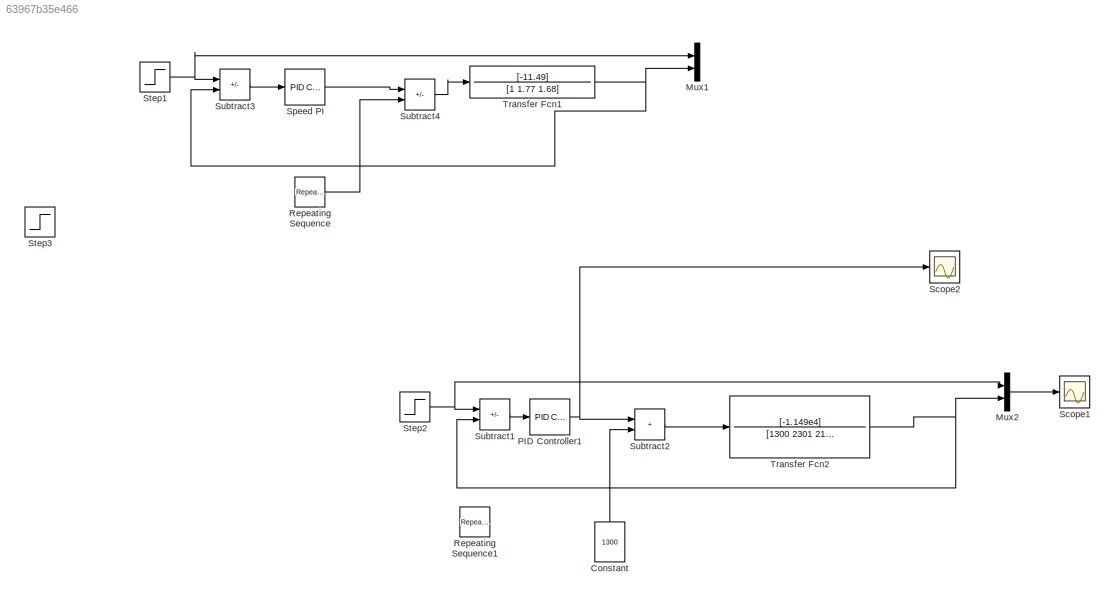
MODEL slx_63967b35e466
KIND model
CONFIG AbsTol = auto
CONFIG EnableMultiTasking = off
CONFIG FixedStep = auto
CONFIG MaxStep = 1e-5
CONFIG MinStep = auto
CONFIG RelTol = 1e-3
CONFIG SampleTimeConstraint = Unconstrained
CONFIG SolverName = VariableStepAuto
CONFIG StartTime = 0.0
CONFIG StopTime = 20
BLOCK [Constant] Constant
  NameLocation = right
  Value = 1300
BLOCK [Mux] Mux1
  DisplayOption = bar
  Inputs = 2
  Ports = [2, 1]
BLOCK [Mux] Mux2
  DisplayOption = bar
  Inputs = 2
  Ports = [2, 1]
BLOCK [Reference] PID Controller1  REF=pid_lib/PID Controller
  Ports = [1, 1]
  SourceBlock = pid_lib/PID Controller
  SourceProductBaseCode = SL
  SourceType = PID 1dof
BLOCK [Reference] Repeating Sequence  REF=simulink/Sources/Repeating
Sequence
  Ports = [0, 1]
  SourceBlock = simulink/Sources/Repeating\nSequence
  SourceProductBaseCode = SL
  SourceType = Repeating table
BLOCK [Reference] Repeating Sequence1  REF=simulink/Sources/Repeating
Sequence
  Ports = [0, 1]
  SourceBlock = simulink/Sources/Repeating\nSequence
  SourceProductBaseCode = SL
  SourceType = Repeating table
BLOCK [Scope] Scope1
  Floating = off
  NumInputPorts = 1
  Ports = [1]
  ScopeSpecificationString = Simulink.scopes.TimeScopeBlockCfg('CurrentConfiguration', extmgr.ConfigurationSet(extmgr.Configuration('Core','General UI',true),extmgr.Configuration('Core','Source UI',true),extmgr.Configuration('Sources','WiredSimulink',true,'DataLoggingVariableName','ScopeData1'),extmgr.Configuration('Visuals','Time Domain',true,'SerializedDisplays',{struct('MinYLimReal','-240.75894','MaxYLimReal','26.7621','YL...<+1512ch>
BLOCK [Scope] Scope2
  Floating = off
  NumInputPorts = 1
  Ports = [1]
  ScopeSpecificationString = Simulink.scopes.TimeScopeBlockCfg('CurrentConfiguration', extmgr.ConfigurationSet(extmgr.Configuration('Core','General UI',true),extmgr.Configuration('Core','Source UI',true),extmgr.Configuration('Sources','WiredSimulink',true,'DataLoggingVariableName','ScopeData2'),extmgr.Configuration('Visuals','Time Domain',true,'SerializedDisplays',{struct('MinYLimReal','-0.27261','MaxYLimReal','0.26462','YLab...<+1474ch>
BLOCK [Reference] Speed PI  REF=pid_lib/PID Controller
  Ports = [1, 1]
  SourceBlock = pid_lib/PID Controller
  SourceProductBaseCode = SL
  SourceType = PID 1dof
BLOCK [Step] Step1
  After = 10
  SampleTime = 0
  Time = 0.5
BLOCK [Step] Step2
  After = 0.01
  SampleTime = 0
  Time = 0
  ZeroCross = off
BLOCK [Step] Step3
  After = -20
  SampleTime = 0
  ZeroCross = off
BLOCK [Sum] Subtract1
  IconShape = rectangular
  Inputs = +-
  Ports = [2, 1]
BLOCK [Sum] Subtract2
  IconShape = rectangular
  Ports = [2, 1]
BLOCK [Sum] Subtract3
  IconShape = rectangular
  Inputs = +-
  Ports = [2, 1]
BLOCK [Sum] Subtract4
  IconShape = rectangular
  Inputs = +-
  Ports = [2, 1]
BLOCK [TransferFcn] Transfer Fcn1
  Denominator = [1 1.77 1.68]
  Numerator = [-11.49]
BLOCK [TransferFcn] Transfer Fcn2
  Denominator = [1300 2301 2183]
  Numerator = [-1.149e4]
LINE Constant:1 -> Subtract2:2
LINE Mux2:1 -> Scope1:1
NET PID Controller1:1 -> Scope2:1, Subtract2:1
LINE Repeating Sequence:1 -> Subtract4:2
LINE Speed PI:1 -> Subtract4:1
NET Step1:1 -> Mux1:1, Subtract3:1
NET Step2:1 -> Mux2:1, Subtract1:1
LINE Subtract1:1 -> PID Controller1:1
LINE Subtract2:1 -> Transfer Fcn2:1
LINE Subtract3:1 -> Speed PI:1
LINE Subtract4:1 -> Transfer Fcn1:1
NET Transfer Fcn1:1 -> Mux1:2, Subtract3:2
NET Transfer Fcn2:1 -> Mux2:2, Subtract1:2
note: NET lines group one-source signal fan-out (src -> all destinations, sorted); 1:1 wires keep LINE
